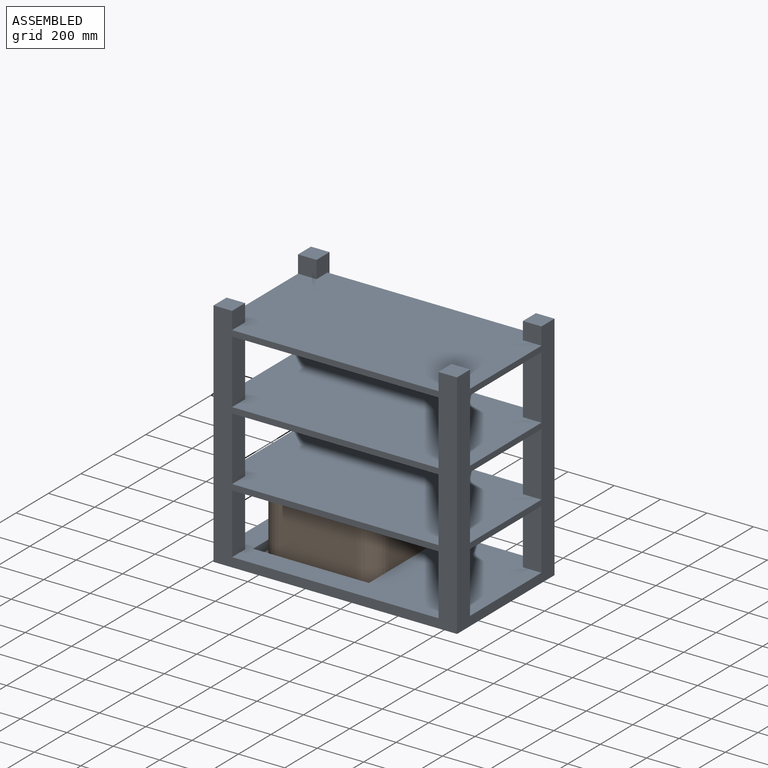
[diagram: assembled view]
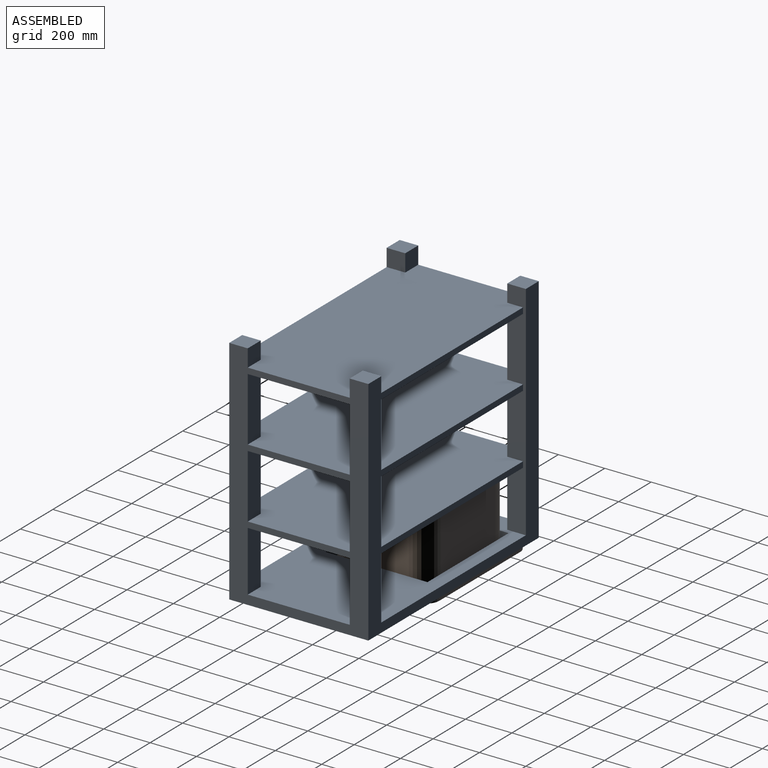
[diagram: assembled view, second angle]
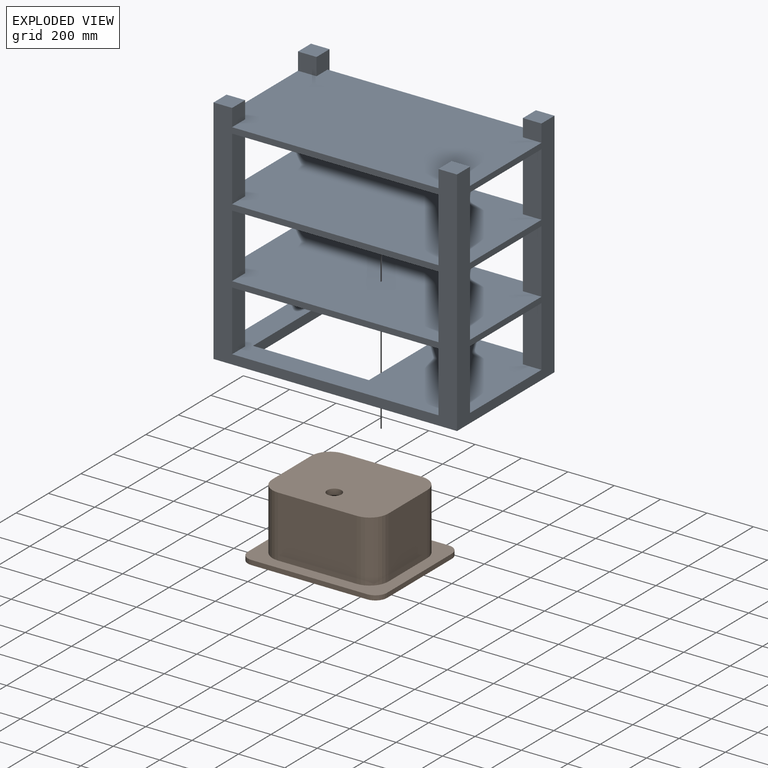
[diagram: exploded view]
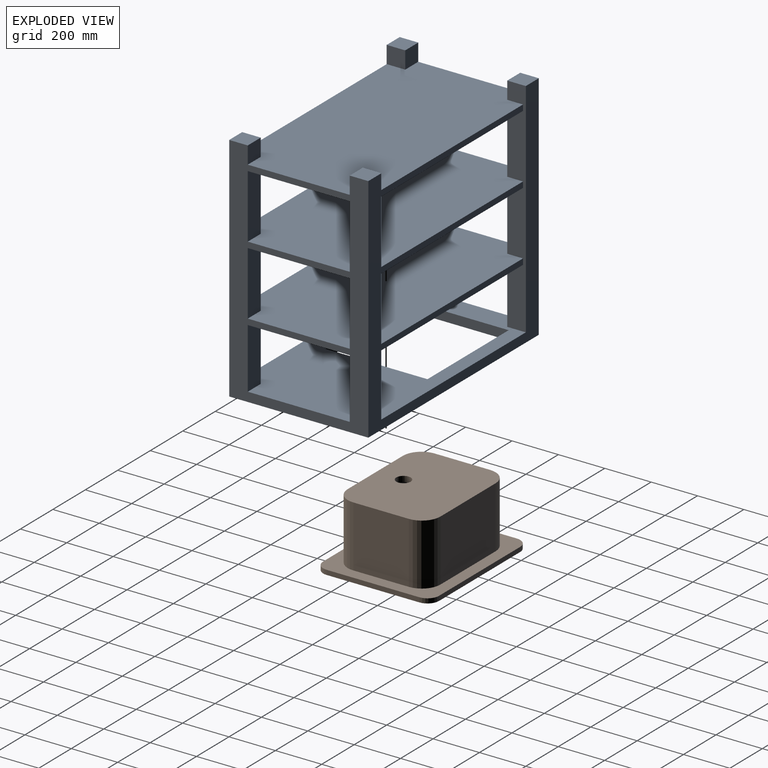
[diagram: exploded view, second angle]
ASSEMBLY  parts=2 mates=3
PART A: 49 faces, bbox 1050x600x1000 mm
  f0: plane 80x75mm, normal (0,1,0), area 6000mm2, adj f1,f24,f28,f47
  f1: plane 80x75mm, normal (1,0,0), area 6000mm2, adj f0,f25,f28,f47
  f2: plane 80x75mm, normal (0,1,0), area 6000mm2, adj f3,f22,f31,f47
  f3: plane 80x75mm, normal (-1,0,0), area 6000mm2, adj f2,f25,f31,f47
  f4: plane 80x75mm, normal (0,-1,0), area 6000mm2, adj f5,f22,f33,f47
  f5: plane 960x80mm, normal (-1,0,0), area 71700mm2, adj f4,f12,f18,f20,f23,f32,f33,f40
  f6: plane 80x75mm, normal (0,-1,0), area 6000mm2, adj f7,f24,f35,f47
  f7: plane 960x80mm, normal (1,0,0), area 71700mm2, adj f6,f13,f19,f20,f23,f34,f35,f40
  f8: plane 275x80mm, normal (0,1,0), area 22000mm2, adj f9,f24,f44,f48
  f9: plane 275x80mm, normal (1,0,0), area 22000mm2, adj f8,f25,f44,f48
  f10: plane 275x80mm, normal (0,1,0), area 22000mm2, adj f11,f22,f44,f48
  f11: plane 275x80mm, normal (-1,0,0), area 22000mm2, adj f10,f25,f44,f48
  f12: plane 275x80mm, normal (0,-1,0), area 22000mm2, adj f5,f22,f44,f48
  f13: plane 275x80mm, normal (0,-1,0), area 22000mm2, adj f7,f24,f44,f48
  f14: plane 275x80mm, normal (0,1,0), area 22000mm2, adj f15,f24,f41,f45
  f15: plane 275x80mm, normal (1,0,0), area 22000mm2, adj f14,f25,f41,f45
  f16: plane 275x80mm, normal (0,1,0), area 22000mm2, adj f17,f22,f41,f45
  f17: plane 275x80mm, normal (-1,0,0), area 22000mm2, adj f16,f25,f41,f45
  f18: plane 275x80mm, normal (0,-1,0), area 22000mm2, adj f5,f22,f41,f45
  f19: plane 275x80mm, normal (0,-1,0), area 22000mm2, adj f7,f24,f41,f45
  f20: plane 1050x600mm, normal (0,0,1), area 384400mm2, adj f5,f7,f22,f23,f24,f25,f26,f27
  f21: plane 1050x600mm, normal (0,0,-1), area 410000mm2, adj f22,f23,f24,f25,f36,f37,f38,f39
  f22: plane 1000x600mm, normal (1,0,0), area 210600mm2, adj f2,f4,f10,f12,f16,f18,f20,f21
  f23: plane 1050x1000mm, normal (0,1,0), area 195600mm2, adj f5,f7,f20,f21,f22,f24,f33,f35
  f24: plane 1000x600mm, normal (-1,0,0), area 210600mm2, adj f0,f6,f8,f13,f14,f19,f20,f21
  f25: plane 1050x1000mm, normal (0,-1,0), area 262350mm2, adj f1,f3,f9,f11,f15,f17,f20,f21
  f26: plane 260x80mm, normal (0,1,0), area 20800mm2, adj f20,f24,f27,f42
  f27: plane 260x80mm, normal (1,0,0), area 20800mm2, adj f20,f25,f26,f42
  f28: plane 80x80mm, normal (0,0,1), area 6400mm2, adj f0,f1,f24,f25
  f29: plane 260x80mm, normal (0,1,0), area 20800mm2, adj f20,f22,f30,f42
  f30: plane 260x80mm, normal (-1,0,0), area 20800mm2, adj f20,f25,f29,f42
  f31: plane 80x80mm, normal (0,0,1), area 6400mm2, adj f2,f3,f22,f25
  f32: plane 260x80mm, normal (0,-1,0), area 20800mm2, adj f5,f20,f22,f42
  f33: plane 80x80mm, normal (0,0,1), area 6400mm2, adj f4,f5,f22,f23
  f34: plane 260x80mm, normal (0,-1,0), area 20800mm2, adj f7,f20,f24,f42
  f35: plane 80x80mm, normal (0,0,1), area 6400mm2, adj f6,f7,f23,f24
  f36: plane 500x40mm, normal (0,1,0), area 20000mm2, adj f20,f21,f37,f39
  f37: plane 440x40mm, normal (1,0,0), area 17600mm2, adj f20,f21,f36,f38
  f38: plane 500x40mm, normal (0,-1,0), area 20000mm2, adj f20,f21,f37,f39
  f39: plane 440x40mm, normal (-1,0,0), area 17600mm2, adj f20,f21,f36,f38
  f40: plane 890x25mm, normal (0,1,0), area 22250mm2, adj f5,f7,f41,f42
  f41: plane 1050x588mm, normal (0,0,1), area 593720mm2, adj f5,f7,f14,f15,f16,f17,f18,f19
  f42: plane 1050x588mm, normal (0,0,-1), area 593720mm2, adj f5,f7,f22,f24,f25,f26,f27,f29
  f43: plane 890x25mm, normal (0,1,0), area 22250mm2, adj f5,f7,f44,f45
  f44: plane 1050x588mm, normal (0,0,1), area 593720mm2, adj f5,f7,f8,f9,f10,f11,f12,f13
  f45: plane 1050x588mm, normal (0,0,-1), area 593720mm2, adj f5,f7,f14,f15,f16,f17,f18,f19
  f46: plane 890x25mm, normal (0,1,0), area 22250mm2, adj f5,f7,f47,f48
  f47: plane 1050x588mm, normal (0,0,1), area 593720mm2, adj f0,f1,f2,f3,f4,f5,f6,f7
  f48: plane 1050x588mm, normal (0,0,-1), area 593720mm2, adj f5,f7,f8,f9,f10,f11,f12,f13
PART B: 45 faces, bbox 600x500x285 mm
  f0: plane 600x500mm, normal (0,0,1), area 86407.1mm2, adj f2,f3,f4,f5,f14,f15,f16,f17
  f1: plane 600x500mm, normal (0,0,-1), area 103347.8mm2, adj f2,f3,f4,f5,f14,f15,f16,f17
  f2: plane 400x20mm, normal (-1,0,0), area 8000mm2, adj f0,f1,f14,f17
  f3: plane 500x20mm, normal (0,-1,0), area 10000mm2, adj f0,f1,f14,f15
  f4: plane 400x20mm, normal (1,0,0), area 8000mm2, adj f0,f1,f15,f16
  f5: plane 500x20mm, normal (0,1,0), area 10000mm2, adj f0,f1,f16,f17
  f6: plane 340x190mm, normal (0,-1,0), area 64600mm2, adj f10,f13,f31,f39
  f7: plane 240x190mm, normal (1,0,0), area 45600mm2, adj f10,f11,f28,f36
  f8: plane 340x190mm, normal (0,1,0), area 64600mm2, adj f11,f12,f32,f40
  f9: plane 240x190mm, normal (-1,0,0), area 45600mm2, adj f12,f13,f35,f43
  f10: cylinder r=70mm len=190mm, axis (0,0,1), area 20891.6mm2, adj f6,f7,f29,f37
  f11: cylinder r=70mm len=190mm, axis (0,0,-1), area 20891.6mm2, adj f7,f8,f30,f38
  f12: cylinder r=70mm len=190mm, axis (0,0,1), area 20891.6mm2, adj f8,f9,f34,f42
  f13: cylinder r=70mm len=190mm, axis (0,0,-1), area 20891.6mm2, adj f6,f9,f33,f41
  f14: cylinder r=50mm len=50mm, axis (0,0,1), area 1570.8mm2, adj f0,f1,f2,f3
  f15: cylinder r=50mm len=50mm, axis (0,0,-1), area 1570.8mm2, adj f0,f1,f3,f4
  f16: cylinder r=50mm len=50mm, axis (0,0,1), area 1570.8mm2, adj f0,f1,f4,f5
  f17: cylinder r=50mm len=50mm, axis (0,0,-1), area 1570.8mm2, adj f0,f1,f2,f5
  f18: plane 340x265mm, normal (0,-1,0), area 90100mm2, adj f1,f19,f25,f27
  f19: cylinder r=80mm len=265mm, axis (0,0,1), area 33300.9mm2, adj f1,f18,f20,f27
  f20: plane 265x240mm, normal (-1,0,0), area 63600mm2, adj f1,f19,f21,f27
  f21: cylinder r=80mm len=265mm, axis (0,0,1), area 33300.9mm2, adj f1,f20,f22,f27
  f22: plane 340x265mm, normal (0,1,0), area 90100mm2, adj f1,f21,f23,f27
  f23: cylinder r=80mm len=265mm, axis (0,0,1), area 33300.9mm2, adj f1,f22,f24,f27
  f24: plane 265x240mm, normal (1,0,0), area 63600mm2, adj f1,f23,f25,f27
  f25: cylinder r=80mm len=265mm, axis (0,0,1), area 33300.9mm2, adj f1,f18,f24,f27
  f26: plane 380x280mm, normal (0,0,1), area 103011.4mm2, adj f28,f29,f30,f31,f32,f33,f34,f35
  f27: plane 500x400mm, normal (0,0,-1), area 191460.9mm2, adj f18,f19,f20,f21,f22,f23,f24,f25
  f28: cylinder r=50mm len=240mm, axis (0,1,0), area 18849.6mm2, adj f7,f26,f29,f30
  f29: torus R=20mm, axis (0,0,-1), area 6394.4mm2, adj f10,f26,f28,f31
  f30: torus R=20mm, axis (0,0,-1), area 6394.4mm2, adj f11,f26,f28,f32
  f31: cylinder r=50mm len=340mm, axis (1,0,0), area 26703.5mm2, adj f6,f26,f29,f33
  f32: cylinder r=50mm len=340mm, axis (-1,0,0), area 26703.5mm2, adj f8,f26,f30,f34
  f33: torus R=20mm, axis (0,0,-1), area 6394.4mm2, adj f13,f26,f31,f35
  f34: torus R=20mm, axis (0,0,-1), area 6394.4mm2, adj f12,f26,f32,f35
  f35: cylinder r=50mm len=240mm, axis (0,-1,0), area 18849.6mm2, adj f9,f26,f33,f34
  f36: cylinder r=20mm len=240mm, axis (0,1,0), area 7539.8mm2, adj f0,f7,f37,f38
  f37: torus R=90mm, axis (0,0,1), area 3813mm2, adj f0,f10,f36,f39
  f38: torus R=90mm, axis (0,0,1), area 3813mm2, adj f0,f11,f36,f40
  f39: cylinder r=20mm len=340mm, axis (1,0,0), area 10681.4mm2, adj f0,f6,f37,f41
  f40: cylinder r=20mm len=340mm, axis (-1,0,0), area 10681.4mm2, adj f0,f8,f38,f42
  f41: torus R=90mm, axis (0,0,1), area 3813mm2, adj f0,f13,f39,f43
  f42: torus R=90mm, axis (0,0,1), area 3813mm2, adj f0,f12,f40,f43
  f43: cylinder r=20mm len=240mm, axis (0,-1,0), area 7539.8mm2, adj f0,f9,f41,f42
  f44: cylinder r=31.13mm len=62.27mm, axis (0,0,1), area 4890.5mm2, adj f26,f27
PLACE A t=(-5.68,504.59,-463.19)mm fixed
PLACE B rot(axis=(1,0,0),180deg) t=(-480.68,794.59,-503.19)mm
MATE planar B.f1 <-> A.f21  axis (0,0,1) through (-180.68,544.59,-503.19)mm
MATE planar B.f20 <-> A.f37  axis (-1,0,0) through (-430.68,544.59,-238.19)mm
MATE planar A.f38 <-> B.f18  axis (0,-1,0) through (-180.68,744.59,-483.19)mm
